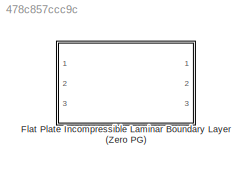
MODEL slx_478c857ccc9c
KIND library
CONFIG AbsTol = auto
CONFIG FixedStep = auto
CONFIG MaxStep = auto
CONFIG MinStep = auto
CONFIG RelTol = 1e-3
CONFIG SampleTimeConstraint = Unconstrained
CONFIG Solver = ode45
CONFIG SolverMode = Auto
CONFIG SolverName = ode45
CONFIG StartTime = 0.0
CONFIG StopTime = 10.0
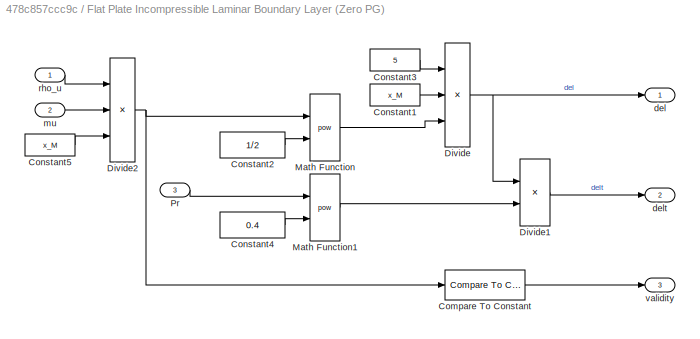
BLOCK [SubSystem] Flat Plate Incompressible Laminar Boundary Layer (Zero PG)
  Ports = [3, 3]
  RequestExecContextInheritance = off
BLOCK [Reference] Flat Plate Incompressible Laminar Boundary Layer (Zero PG)/Compare To Constant  REF=simulink/Logic and Bit
Operations/Compare
To Constant
  OutDataTypeStr = boolean
  Ports = [1, 1]
  SourceBlock = simulink/Logic and Bit\nOperations/Compare\nTo Constant
  SourceType = Compare To Constant
  ZeroCross = on
  const = Retr_M
  relop = >
BLOCK [Constant] Flat Plate Incompressible Laminar Boundary Layer (Zero PG)/Constant1
  Value = x_M
BLOCK [Constant] Flat Plate Incompressible Laminar Boundary Layer (Zero PG)/Constant2
  Value = 1/2
BLOCK [Constant] Flat Plate Incompressible Laminar Boundary Layer (Zero PG)/Constant3
  Value = 5
BLOCK [Constant] Flat Plate Incompressible Laminar Boundary Layer (Zero PG)/Constant4
  Value = 0.4
BLOCK [Constant] Flat Plate Incompressible Laminar Boundary Layer (Zero PG)/Constant5
  Value = x_M
BLOCK [Product] Flat Plate Incompressible Laminar Boundary Layer (Zero PG)/Divide
  InputSameDT = off
  Inputs = **/
  OutDataTypeStr = Inherit: Inherit via internal rule
  Ports = [3, 1]
  RndMeth = Floor
  SaturateOnIntegerOverflow = off
BLOCK [Product] Flat Plate Incompressible Laminar Boundary Layer (Zero PG)/Divide1
  InputSameDT = off
  Inputs = */
  OutDataTypeStr = Inherit: Inherit via internal rule
  Ports = [2, 1]
  RndMeth = Floor
  SaturateOnIntegerOverflow = off
BLOCK [Product] Flat Plate Incompressible Laminar Boundary Layer (Zero PG)/Divide2
  InputSameDT = off
  Inputs = */*
  OutDataTypeStr = Inherit: Inherit via internal rule
  Ports = [3, 1]
  RndMeth = Floor
  SaturateOnIntegerOverflow = off
BLOCK [Math] Flat Plate Incompressible Laminar Boundary Layer (Zero PG)/Math Function
  Operator = pow
  Ports = [2, 1]
BLOCK [Math] Flat Plate Incompressible Laminar Boundary Layer (Zero PG)/Math Function1
  Operator = pow
  Ports = [2, 1]
BLOCK [Inport] Flat Plate Incompressible Laminar Boundary Layer (Zero PG)/Pr
  IconDisplay = Port number
  Port = 3
BLOCK [Outport] Flat Plate Incompressible Laminar Boundary Layer (Zero PG)/del
  IconDisplay = Port number
BLOCK [Outport] Flat Plate Incompressible Laminar Boundary Layer (Zero PG)/delt
  IconDisplay = Port number
  Port = 2
BLOCK [Inport] Flat Plate Incompressible Laminar Boundary Layer (Zero PG)/mu
  IconDisplay = Port number
  Port = 2
BLOCK [Inport] Flat Plate Incompressible Laminar Boundary Layer (Zero PG)/rho_u
  IconDisplay = Port number
BLOCK [Outport] Flat Plate Incompressible Laminar Boundary Layer (Zero PG)/validity
  IconDisplay = Port number
  Port = 3
LINE Flat Plate Incompressible Laminar Boundary Layer (Zero PG)/Compare To Constant:1 -> Flat Plate Incompressible Laminar Boundary Layer (Zero PG)/validity:1
LINE Flat Plate Incompressible Laminar Boundary Layer (Zero PG)/Constant1:1 -> Flat Plate Incompressible Laminar Boundary Layer (Zero PG)/Divide:2
LINE Flat Plate Incompressible Laminar Boundary Layer (Zero PG)/Constant2:1 -> Flat Plate Incompressible Laminar Boundary Layer (Zero PG)/Math Function:2
LINE Flat Plate Incompressible Laminar Boundary Layer (Zero PG)/Constant3:1 -> Flat Plate Incompressible Laminar Boundary Layer (Zero PG)/Divide:1
LINE Flat Plate Incompressible Laminar Boundary Layer (Zero PG)/Constant4:1 -> Flat Plate Incompressible Laminar Boundary Layer (Zero PG)/Math Function1:2
LINE Flat Plate Incompressible Laminar Boundary Layer (Zero PG)/Constant5:1 -> Flat Plate Incompressible Laminar Boundary Layer (Zero PG)/Divide2:3
LINE Flat Plate Incompressible Laminar Boundary Layer (Zero PG)/Divide1:1 -> Flat Plate Incompressible Laminar Boundary Layer (Zero PG)/delt:1
NET Flat Plate Incompressible Laminar Boundary Layer (Zero PG)/Divide2:1 -> Flat Plate Incompressible Laminar Boundary Layer (Zero PG)/Compare To Constant:1, Flat Plate Incompressible Laminar Boundary Layer (Zero PG)/Math Function:1
NET Flat Plate Incompressible Laminar Boundary Layer (Zero PG)/Divide:1 -> Flat Plate Incompressible Laminar Boundary Layer (Zero PG)/Divide1:1, Flat Plate Incompressible Laminar Boundary Layer (Zero PG)/del:1
LINE Flat Plate Incompressible Laminar Boundary Layer (Zero PG)/Math Function1:1 -> Flat Plate Incompressible Laminar Boundary Layer (Zero PG)/Divide1:2
LINE Flat Plate Incompressible Laminar Boundary Layer (Zero PG)/Math Function:1 -> Flat Plate Incompressible Laminar Boundary Layer (Zero PG)/Divide:3
LINE Flat Plate Incompressible Laminar Boundary Layer (Zero PG)/Pr:1 -> Flat Plate Incompressible Laminar Boundary Layer (Zero PG)/Math Function1:1
LINE Flat Plate Incompressible Laminar Boundary Layer (Zero PG)/mu:1 -> Flat Plate Incompressible Laminar Boundary Layer (Zero PG)/Divide2:2
LINE Flat Plate Incompressible Laminar Boundary Layer (Zero PG)/rho_u:1 -> Flat Plate Incompressible Laminar Boundary Layer (Zero PG)/Divide2:1
note: NET lines group one-source signal fan-out (src -> all destinations, sorted); 1:1 wires keep LINE
